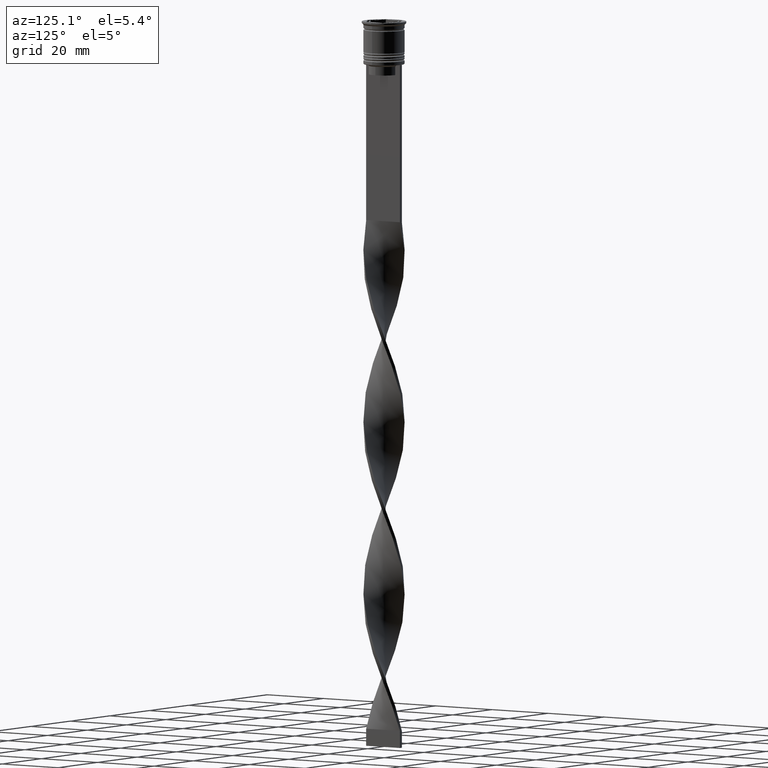
[diagram: clean part render]
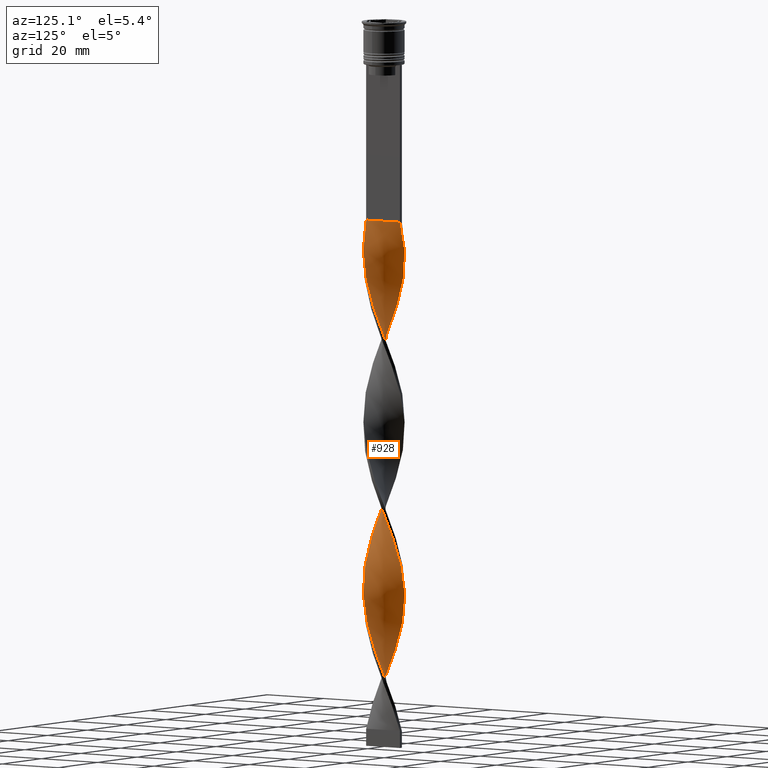
[diagram: same view with one face highlighted and labeled with its STEP entity id]
A machine part, auxiliary view. The second image highlights one B-rep face of the part: STEP entity #928.
In plain terms, the highlighted face is a freeform B-spline surface patch.
Its self-contained STEP definition (entity closure, byte-faithful):
#4 = CARTESIAN_POINT ( 'NONE',  ( 5.148110570242104167, 3.122011780336760189, -90.63725490196078738 ) ) ;
#20 = CARTESIAN_POINT ( 'NONE',  ( -5.634122364000873517, 2.122890762018907029, -178.2843137254901933 ) ) ;
#23 = CARTESIAN_POINT ( 'NONE',  ( -2.131985436030567005, 5.658259501511265555, -112.5490196078431495 ) ) ;
#33 = CARTESIAN_POINT ( 'NONE',  ( 5.830837162583066835, 1.600812440396822023, -86.25490196078432348 ) ) ;
#39 = CARTESIAN_POINT ( 'NONE',  ( 5.593848926018642587, -2.226848488981698626, -175.3627450980391984 ) ) ;
#44 = CARTESIAN_POINT ( 'NONE',  ( 0.5000000000000002220, 6.000000000000000888, -58.50000000000000000 ) ) ;
#52 = CARTESIAN_POINT ( 'NONE',  ( 0.05598187745217741984, 6.046331823121015248, -106.7058823529412024 ) ) ;
#63 = CARTESIAN_POINT ( 'NONE',  ( -1.055981877452178308, -5.953668176878988305, -106.7058823529411882 ) ) ;
#76 = ORIENTED_EDGE ( 'NONE', *, *, #2148, .F. ) ;
#78 = CARTESIAN_POINT ( 'NONE',  ( 3.230580290619939454, 5.111224263495680376, -97.94117647058824616 ) ) ;
#83 = CARTESIAN_POINT ( 'NONE',  ( 2.733484409399326687, 5.364518895816362765, -198.7352941176470722 ) ) ;
#97 = CARTESIAN_POINT ( 'NONE',  ( -5.089420681871064112, 3.216799204635418796, -122.7745098039215605 ) ) ;
#103 = CARTESIAN_POINT ( 'NONE',  ( 6.020539237501857599, -0.05574306863229464004, -181.2058823529411598 ) ) ;
#105 = CARTESIAN_POINT ( 'NONE',  ( 5.437407565418681088, -2.644969083640992924, -127.1568627450980102 ) ) ;
#108 = CARTESIAN_POINT ( 'NONE',  ( -5.907785354072956352, -1.161065118846087874, -187.0490196078431211 ) ) ;
#117 = CARTESIAN_POINT ( 'NONE',  ( 5.634122364000871741, 2.122890762018907029, -87.71568627450979250 ) ) ;
#125 = CARTESIAN_POINT ( 'NONE',  ( -5.089420681871066776, -3.216799204635418796, -93.55882352941176805 ) ) ;
#127 = CARTESIAN_POINT ( 'NONE',  ( 0.5000000000000002220, 6.000000000000000888, -157.8333333333333144 ) ) ;
#138 = CARTESIAN_POINT ( 'NONE',  ( 3.230580290619939454, 5.111224263495680376, -197.2745098039215463 ) ) ;
#146 = CARTESIAN_POINT ( 'NONE',  ( 2.236388528178716140, 5.617813528137045154, -200.1960784313725696 ) ) ;
#148 = CARTESIAN_POINT ( 'NONE',  ( -5.387501025401045140, -2.745194926993649975, -92.09803921568628482 ) ) ;
#150 = CARTESIAN_POINT ( 'NONE',  ( -5.928270878038556013, 1.051477244927329524, -181.2058823529411598 ) ) ;
#165 = CARTESIAN_POINT ( 'NONE',  ( -3.230580290619940786, 5.111224263495681264, -68.72549019607842524 ) ) ;
#168 = CARTESIAN_POINT ( 'NONE',  ( 3.583701545128945121, 4.838086732939006041, -149.0686274509803866 ) ) ;
#178 = CARTESIAN_POINT ( 'NONE',  ( 5.437407565418679312, 2.644969083640992036, -188.5098039215686185 ) ) ;
#180 =( BOUNDED_SURFACE ( )  B_SPLINE_SURFACE ( 1, 2, ( 
 ( #2936, #1127, #2525, #1326, #2227, #3120, #3525, #165, #1039, #442, #739, #237, #469, #1932, #1434, #3163, #3752, #1059, #3139, #3420, #3236, #2206, #1600, #148, #125, #2245, #2180, #2314, #3393, #3457, #1912, #3707, #758, #423, #1951, #3101, #1662, #538, #2634, #832, #721, #2861, #1366, #697, #2615, #1732, #404, #105, #1620, #1307, #2500, #2818, #886, #2081, #312, #3837, #609, #868, #2954, #851, #256, #1147, #334, #1802, #1509, #571, #3007, #2711, #2374, #1818, #3583, #1750, #1220, #297, #1477, #2409, #1199, #554, #3030, #1531, #3253, #1771, #20, #3293, #922, #3324, #3621, #3604, #2339, #2112, #2043, #1184, #625, #594, #906, #1459, #1788, #2658, #3549, #3863, #2990, #1167, #2356 ),
 ( #2098, #3881, #1492, #2689, #2975, #279, #3567, #2058, #2394, #3897, #3308, #3270, #2676, #3722, #2746, #3346, #1568, #1859, #3090, #33, #117, #2728, #2766, #3662, #1549, #396, #2153, #78, #3635, #1299, #1033, #733, #1317, #52, #2792, #1904, #1235, #1008, #1281, #3070, #2511, #965, #688, #353, #97, #3679, #988, #3112, #2426, #3407, #3366, #1841, #941, #3049, #2128, #3132, #714, #415, #667, #1612, #2811, #2471, #1924, #2172, #650, #2221, #1592, #368, #3432, #2492, #1254, #435, #2447, #3385, #1877, #3698, #2192, #2611, #1123, #3506, #1397, #2829, #3814, #3745, #2873, #1712, #3780, #2594, #2238, #178, #3451, #3232, #1052, #2280, #806, #138, #1691, #1674, #479, #3520, #2309, #1998, #3800 ) ),
 .UNSPECIFIED., .F., .F., .F. ) 
 B_SPLINE_SURFACE_WITH_KNOTS ( ( 2, 2 ),
 ( 3, 2, 2, 2, 2, 2, 2, 2, 2, 2, 2, 2, 2, 2, 2, 2, 2, 2, 2, 2, 2, 2, 2, 2, 2, 2, 2, 2, 2, 2, 2, 2, 2, 2, 2, 2, 2, 2, 2, 2, 2, 2, 2, 2, 2, 2, 2, 2, 2, 2, 2, 3 ),
 ( 0.000000000000000000, 1.000000000000000000 ),
 ( 0.000000000000000000, 0.01470588235294117627, 0.02941176470588235253, 0.04411764705882353227, 0.05882352941176470507, 0.07352941176470588480, 0.08823529411764706454, 0.1029411764705882304, 0.1176470588235294101, 0.1323529411764705899, 0.1470588235294117696, 0.1617647058823529493, 0.1764705882352941291, 0.1911764705882352811, 0.2058823529411764608, 0.2205882352941176405, 0.2352941176470588203, 0.2500000000000000000, 0.2647058823529411797, 0.2794117647058823595, 0.2941176470588235392, 0.3088235294117647189, 0.3235294117647058987, 0.3382352941176470784, 0.3529411764705882582, 0.3676470588235294379, 0.3823529411764705621, 0.3970588235294117418, 0.4117647058823529216, 0.4264705882352941013, 0.4411764705882352811, 0.4558823529411764608, 0.4705882352941176405, 0.4852941176470588203, 0.5000000000000000000, 0.5147058823529411242, 0.5294117647058823595, 0.5441176470588234837, 0.5588235294117647189, 0.5735294117647058432, 0.5882352941176470784, 0.6029411764705882026, 0.6176470588235294379, 0.6323529411764705621, 0.6470588235294117974, 0.6617647058823529216, 0.6764705882352941568, 0.6911764705882352811, 0.7058823529411765163, 0.7205882352941176405, 0.7352941176470588758, 0.7500000000000000000 ),
 .UNSPECIFIED. ) 
 GEOMETRIC_REPRESENTATION_ITEM ( )  RATIONAL_B_SPLINE_SURFACE ( (
 ( 1.000000000000000000, 0.9957341762950344677, 1.000000000000000000, 0.9957341762950344677, 1.000000000000000000, 0.9957341762950344677, 1.000000000000000000, 0.9957341762950344677, 1.000000000000000000, 0.9957341762950344677, 1.000000000000000000, 0.9957341762950344677, 1.000000000000000000, 0.9957341762950344677, 1.000000000000000000, 0.9957341762950344677, 1.000000000000000000, 0.9957341762950344677, 1.000000000000000000, 0.9957341762950344677, 1.000000000000000000, 0.9957341762950344677, 1.000000000000000000, 0.9957341762950344677, 1.000000000000000000, 0.9957341762950344677, 1.000000000000000000, 0.9957341762950344677, 1.000000000000000000, 0.9957341762950344677, 1.000000000000000000, 0.9957341762950344677, 1.000000000000000000, 0.9957341762950344677, 1.000000000000000000, 0.9957341762950344677, 1.000000000000000000, 0.9957341762950344677, 1.000000000000000000, 0.9957341762950344677, 1.000000000000000000, 0.9957341762950344677, 1.000000000000000000, 0.9957341762950344677, 1.000000000000000000, 0.9957341762950344677, 1.000000000000000000, 0.9957341762950344677, 1.000000000000000000, 0.9957341762950344677, 1.000000000000000000, 0.9957341762950344677, 1.000000000000000000, 0.9957341762950344677, 1.000000000000000000, 0.9957341762950344677, 1.000000000000000000, 0.9957341762950344677, 1.000000000000000000, 0.9957341762950344677, 1.000000000000000000, 0.9957341762950344677, 1.000000000000000000, 0.9957341762950344677, 1.000000000000000000, 0.9957341762950344677, 1.000000000000000000, 0.9957341762950344677, 1.000000000000000000, 0.9957341762950344677, 1.000000000000000000, 0.9957341762950344677, 1.000000000000000000, 0.9957341762950344677, 1.000000000000000000, 0.9957341762950344677, 1.000000000000000000, 0.9957341762950344677, 1.000000000000000000, 0.9957341762950344677, 1.000000000000000000, 0.9957341762950344677, 1.000000000000000000, 0.9957341762950344677, 1.000000000000000000, 0.9957341762950344677, 1.000000000000000000, 0.9957341762950344677, 1.000000000000000000, 0.9957341762950344677, 1.000000000000000000, 0.9957341762950344677, 1.000000000000000000, 0.9957341762950344677, 1.000000000000000000, 0.9957341762950344677, 1.000000000000000000, 0.9957341762950344677, 1.000000000000000000, 0.9957341762950344677, 1.000000000000000000, 0.9957341762950344677, 1.000000000000000000),
 ( 1.000000000000000000, 0.9957341762950344677, 1.000000000000000000, 0.9957341762950344677, 1.000000000000000000, 0.9957341762950344677, 1.000000000000000000, 0.9957341762950344677, 1.000000000000000000, 0.9957341762950344677, 1.000000000000000000, 0.9957341762950344677, 1.000000000000000000, 0.9957341762950344677, 1.000000000000000000, 0.9957341762950344677, 1.000000000000000000, 0.9957341762950344677, 1.000000000000000000, 0.9957341762950344677, 1.000000000000000000, 0.9957341762950344677, 1.000000000000000000, 0.9957341762950344677, 1.000000000000000000, 0.9957341762950344677, 1.000000000000000000, 0.9957341762950344677, 1.000000000000000000, 0.9957341762950344677, 1.000000000000000000, 0.9957341762950344677, 1.000000000000000000, 0.9957341762950344677, 1.000000000000000000, 0.9957341762950344677, 1.000000000000000000, 0.9957341762950344677, 1.000000000000000000, 0.9957341762950344677, 1.000000000000000000, 0.9957341762950344677, 1.000000000000000000, 0.9957341762950344677, 1.000000000000000000, 0.9957341762950344677, 1.000000000000000000, 0.9957341762950344677, 1.000000000000000000, 0.9957341762950344677, 1.000000000000000000, 0.9957341762950344677, 1.000000000000000000, 0.9957341762950344677, 1.000000000000000000, 0.9957341762950344677, 1.000000000000000000, 0.9957341762950344677, 1.000000000000000000, 0.9957341762950344677, 1.000000000000000000, 0.9957341762950344677, 1.000000000000000000, 0.9957341762950344677, 1.000000000000000000, 0.9957341762950344677, 1.000000000000000000, 0.9957341762950344677, 1.000000000000000000, 0.9957341762950344677, 1.000000000000000000, 0.9957341762950344677, 1.000000000000000000, 0.9957341762950344677, 1.000000000000000000, 0.9957341762950344677, 1.000000000000000000, 0.9957341762950344677, 1.000000000000000000, 0.9957341762950344677, 1.000000000000000000, 0.9957341762950344677, 1.000000000000000000, 0.9957341762950344677, 1.000000000000000000, 0.9957341762950344677, 1.000000000000000000, 0.9957341762950344677, 1.000000000000000000, 0.9957341762950344677, 1.000000000000000000, 0.9957341762950344677, 1.000000000000000000, 0.9957341762950344677, 1.000000000000000000, 0.9957341762950344677, 1.000000000000000000, 0.9957341762950344677, 1.000000000000000000, 0.9957341762950344677, 1.000000000000000000, 0.9957341762950344677, 1.000000000000000000) ) ) 
 REPRESENTATION_ITEM ( '' )  SURFACE ( )  );
#223 = CARTESIAN_POINT ( 'NONE',  ( 2.633686111825095377, -5.414212543332557637, -64.34313725490196134 ) ) ;
#237 = CARTESIAN_POINT ( 'NONE',  ( -4.858813575065530799, 3.599054477032530563, -74.56862745098038658 ) ) ;
#256 = CARTESIAN_POINT ( 'NONE',  ( 4.411678320489673233, 4.097205681500676988, -146.1470588235294201 ) ) ;
#279 = CARTESIAN_POINT ( 'NONE',  ( 3.135386787619625082, -5.170165585153850607, -65.80392156862747299 ) ) ;
#284 = CARTESIAN_POINT ( 'NONE',  ( -0.6110105570574692058, -5.989713357011694939, -154.9117647058823479 ) ) ;
#288 = CARTESIAN_POINT ( 'NONE',  ( -5.387501025401045140, -2.745194926993649975, -92.09803921568628482 ) ) ;
#297 = CARTESIAN_POINT ( 'NONE',  ( -2.236388528178716584, 5.617813528137047818, -165.1372549019608016 ) ) ;
#301 = CARTESIAN_POINT ( 'NONE',  ( -4.411678320489672345, 4.097205681500675212, -119.8529411764705799 ) ) ;
#304 = CARTESIAN_POINT ( 'NONE',  ( 4.486786045491808927, -4.014816431915659400, -122.7745098039215605 ) ) ;
#312 = CARTESIAN_POINT ( 'NONE',  ( 5.907785354072956352, 1.161065118846087207, -137.3823529411764639 ) ) ;
#318 = CARTESIAN_POINT ( 'NONE',  ( -5.907785354072954576, 1.161065118846088762, -128.6176470588235361 ) ) ;
#322 = CARTESIAN_POINT ( 'NONE',  ( 4.114758515918088833, -4.430578386798787349, -121.3137254901960773 ) ) ;
#334 = CARTESIAN_POINT ( 'NONE',  ( 3.583701545128945121, 4.838086732939006041, -149.0686274509803866 ) ) ;
#340 = CARTESIAN_POINT ( 'NONE',  ( 3.135386787619625082, -5.170165585153850607, -165.1372549019608016 ) ) ;
#344 = CARTESIAN_POINT ( 'NONE',  ( -6.015373881509671783, -0.6136281867224271380, -86.25490196078432348 ) ) ;
#353 = CARTESIAN_POINT ( 'NONE',  ( -4.791340338341087524, 3.688403482277188061, -121.3137254901960631 ) ) ;
#362 = CARTESIAN_POINT ( 'NONE',  ( -2.131985436030568781, -5.658259501511267331, -103.7843137254901791 ) ) ;
#368 = CARTESIAN_POINT ( 'NONE',  ( -0.05598187745217816924, -6.046331823121015248, -156.3725490196078454 ) ) ;
#380 = CARTESIAN_POINT ( 'NONE',  ( 2.131985436030569225, 5.658259501511266443, -153.4509803921568789 ) ) ;
#396 = CARTESIAN_POINT ( 'NONE',  ( 4.114758515918087056, 4.430578386798786461, -95.01960784313725128 ) ) ;
#402 = CARTESIAN_POINT ( 'NONE',  ( 0.6110105570574709821, 5.989713357011695827, -204.5784313725490335 ) ) ;
#403 = VERTEX_POINT ( 'NONE', #3629 ) ;
#404 = CARTESIAN_POINT ( 'NONE',  ( 5.148110570242106832, -3.122011780336759745, -125.6960784313725412 ) ) ;
#406 = CARTESIAN_POINT ( 'NONE',  ( -5.593848926018644363, -2.226848488981698626, -189.9705882352941160 ) ) ;
#415 = CARTESIAN_POINT ( 'NONE',  ( -4.858813575065529022, -3.599054477032529675, -141.7647058823529562 ) ) ;
#423 = CARTESIAN_POINT ( 'NONE',  ( -1.055981877452178086, -5.953668176878989193, -106.7058823529412024 ) ) ;
#425 = CARTESIAN_POINT ( 'NONE',  ( -1.055981877452178308, -5.953668176878988305, -206.0392156862745026 ) ) ;
#432 =( BOUNDED_CURVE ( )  B_SPLINE_CURVE ( 2, ( #44, #1211, #2738, #1523, #2982, #2091, #1832, #1795, #2401, #2418, #3612, #876, #1227, #3628, #615, #2068, #932, #1190, #3282, #344, #2437, #2719, #1244, #288, #3646, #2104, #1808, #2755, #3060, #955, #3357, #362, #1560, #63, #3301, #602, #3016, #659, #1851, #2997, #3593, #1483, #1269, #322, #304, #2682, #1955, #3441, #1309, #444, #2820, #741, #2845, #2229, #1368, #1602, #3671, #1893, #1353, #1868, #3395, #1020, #168, #1934, #2528, #380, #2502, #2802, #127, #977, #1061, #2163, #3709, #701, #2482, #1329, #3103, #2210, #678, #3142, #3166, #2247, #999, #3736, #150, #3376, #1642, #3423, #108, #3459, #406, #1623, #1290, #1042, #723, #1914, #2546, #3079, #3754, #3122, #2780, #425, #3689 ),
 .UNSPECIFIED., .F., .T. ) 
 B_SPLINE_CURVE_WITH_KNOTS ( ( 3, 2, 2, 2, 2, 2, 2, 2, 2, 2, 2, 2, 2, 2, 2, 2, 2, 2, 2, 2, 2, 2, 2, 2, 2, 2, 2, 2, 2, 2, 2, 2, 2, 2, 2, 2, 2, 2, 2, 2, 2, 2, 2, 2, 2, 2, 2, 2, 2, 2, 2, 3 ),
 ( 0.000000000000000000, 0.01470588235294117453, 0.02941176470588234906, 0.04411764705882353227, 0.05882352941176469813, 0.07352941176470588480, 0.08823529411764706454, 0.1029411764705882443, 0.1176470588235293963, 0.1323529411764705899, 0.1470588235294117696, 0.1617647058823529493, 0.1764705882352941291, 0.1911764705882352811, 0.2058823529411764885, 0.2205882352941176405, 0.2352941176470587925, 0.2500000000000000000, 0.2647058823529411797, 0.2794117647058823595, 0.2941176470588235392, 0.3088235294117647189, 0.3235294117647058987, 0.3382352941176470229, 0.3529411764705882582, 0.3676470588235294379, 0.3823529411764705621, 0.3970588235294117418, 0.4117647058823529771, 0.4264705882352941013, 0.4411764705882352811, 0.4558823529411764608, 0.4705882352941175850, 0.4852941176470588203, 0.5000000000000000000, 0.5147058823529411242, 0.5294117647058823595, 0.5441176470588234837, 0.5588235294117647189, 0.5735294117647058432, 0.5882352941176470784, 0.6029411764705882026, 0.6176470588235294379, 0.6323529411764705621, 0.6470588235294117974, 0.6617647058823529216, 0.6764705882352940458, 0.6911764705882351700, 0.7058823529411765163, 0.7205882352941176405, 0.7352941176470588758, 0.7500000000000000000 ),
 .UNSPECIFIED. ) 
 CURVE ( )  GEOMETRIC_REPRESENTATION_ITEM ( )  RATIONAL_B_SPLINE_CURVE ( ( 1.000000000000000000, 0.9957341762950344677, 1.000000000000000000, 0.9957341762950344677, 1.000000000000000000, 0.9957341762950344677, 1.000000000000000000, 0.9957341762950344677, 1.000000000000000000, 0.9957341762950344677, 1.000000000000000000, 0.9957341762950344677, 1.000000000000000000, 0.9957341762950344677, 1.000000000000000000, 0.9957341762950344677, 1.000000000000000000, 0.9957341762950344677, 1.000000000000000000, 0.9957341762950344677, 1.000000000000000000, 0.9957341762950344677, 1.000000000000000000, 0.9957341762950344677, 1.000000000000000000, 0.9957341762950344677, 1.000000000000000000, 0.9957341762950344677, 1.000000000000000000, 0.9957341762950344677, 1.000000000000000000, 0.9957341762950344677, 1.000000000000000000, 0.9957341762950344677, 1.000000000000000000, 0.9957341762950344677, 1.000000000000000000, 0.9957341762950344677, 1.000000000000000000, 0.9957341762950344677, 1.000000000000000000, 0.9957341762950344677, 1.000000000000000000, 0.9957341762950344677, 1.000000000000000000, 0.9957341762950344677, 1.000000000000000000, 0.9957341762950344677, 1.000000000000000000, 0.9957341762950344677, 1.000000000000000000, 0.9957341762950344677, 1.000000000000000000, 0.9957341762950344677, 1.000000000000000000, 0.9957341762950344677, 1.000000000000000000, 0.9957341762950344677, 1.000000000000000000, 0.9957341762950344677, 1.000000000000000000, 0.9957341762950344677, 1.000000000000000000, 0.9957341762950344677, 1.000000000000000000, 0.9957341762950344677, 1.000000000000000000, 0.9957341762950344677, 1.000000000000000000, 0.9957341762950344677, 1.000000000000000000, 0.9957341762950344677, 1.000000000000000000, 0.9957341762950344677, 1.000000000000000000, 0.9957341762950344677, 1.000000000000000000, 0.9957341762950344677, 1.000000000000000000, 0.9957341762950344677, 1.000000000000000000, 0.9957341762950344677, 1.000000000000000000, 0.9957341762950344677, 1.000000000000000000, 0.9957341762950344677, 1.000000000000000000, 0.9957341762950344677, 1.000000000000000000, 0.9957341762950344677, 1.000000000000000000, 0.9957341762950344677, 1.000000000000000000, 0.9957341762950344677, 1.000000000000000000, 0.9957341762950344677, 1.000000000000000000, 0.9957341762950344677, 1.000000000000000000, 0.9957341762950344677, 1.000000000000000000, 0.9957341762950344677, 1.000000000000000000 ) ) 
 REPRESENTATION_ITEM ( '' )  );
#435 = CARTESIAN_POINT ( 'NONE',  ( 2.131985436030567005, -5.658259501511264666, -162.2156862745098351 ) ) ;
#442 = CARTESIAN_POINT ( 'NONE',  ( -4.114758515918087944, 4.430578386798787349, -71.64705882352943433 ) ) ;
#444 = CARTESIAN_POINT ( 'NONE',  ( 5.830837162583069500, -1.600812440396820246, -130.0784313725490335 ) ) ;
#469 = CARTESIAN_POINT ( 'NONE',  ( -5.148110570242105943, 3.122011780336761522, -76.02941176470586981 ) ) ;
#479 = CARTESIAN_POINT ( 'NONE',  ( 1.701213882420739232, 5.775454209519709892, -201.6568627450980387 ) ) ;
#538 = CARTESIAN_POINT ( 'NONE',  ( 1.166039236662763434, -5.933094890902377294, -112.5490196078431495 ) ) ;
#541 = CARTESIAN_POINT ( 'NONE',  ( 4.032016302638260719, -4.506007880724164139, -68.72549019607842524 ) ) ;
#554 = CARTESIAN_POINT ( 'NONE',  ( -4.114758515918087944, 4.430578386798787349, -170.9803921568627629 ) ) ;
#571 = CARTESIAN_POINT ( 'NONE',  ( 2.131985436030568781, 5.658259501511265555, -153.4509803921568789 ) ) ;
#580 = CARTESIAN_POINT ( 'NONE',  ( -5.634122364000871741, -2.122890762018906141, -137.3823529411764639 ) ) ;
#594 = CARTESIAN_POINT ( 'NONE',  ( -4.791340338341087524, -3.688403482277189838, -194.3529411764705799 ) ) ;
#598 = CARTESIAN_POINT ( 'NONE',  ( -5.148110570242102391, -3.122011780336762410, -140.3039215686274588 ) ) ;
#602 = CARTESIAN_POINT ( 'NONE',  ( 0.05598187745217893252, -6.046331823121016136, -109.6274509803921404 ) ) ;
#609 = CARTESIAN_POINT ( 'NONE',  ( 5.593848926018644363, 2.226848488981700402, -140.3039215686274588 ) ) ;
#612 = CARTESIAN_POINT ( 'NONE',  ( -0.4999999999999994449, 5.999999999999999112, -108.1666666666666572 ) ) ;
#615 = CARTESIAN_POINT ( 'NONE',  ( -5.634122364000873517, 2.122890762018907029, -78.95098039215686470 ) ) ;
#625 = CARTESIAN_POINT ( 'NONE',  ( -5.089420681871066776, -3.216799204635418796, -192.8921568627450824 ) ) ;
#633 = CARTESIAN_POINT ( 'NONE',  ( -1.593983656741371657, 5.805963839195126042, -111.0882352941176379 ) ) ;
#650 = CARTESIAN_POINT ( 'NONE',  ( -1.701213882420739676, -5.775454209519709892, -151.9901960784313530 ) ) ;
#655 = CARTESIAN_POINT ( 'NONE',  ( 2.633686111825095377, -5.414212543332557637, -163.6764705882352757 ) ) ;
#659 = CARTESIAN_POINT ( 'NONE',  ( 1.166039236662763434, -5.933094890902378182, -112.5490196078431495 ) ) ;
#667 = CARTESIAN_POINT ( 'NONE',  ( -4.486786045491809816, -4.014816431915656736, -143.2254901960784537 ) ) ;
#673 = CARTESIAN_POINT ( 'NONE',  ( 5.634122364000871741, 2.122890762018907029, -187.0490196078431211 ) ) ;
#678 = CARTESIAN_POINT ( 'NONE',  ( -4.486786045491809816, 4.014816431915658512, -172.4411764705882035 ) ) ;
#688 = CARTESIAN_POINT ( 'NONE',  ( -4.411678320489672345, 4.097205681500675212, -119.8529411764705799 ) ) ;
#697 = CARTESIAN_POINT ( 'NONE',  ( 4.114758515918088833, -4.430578386798787349, -121.3137254901960631 ) ) ;
#701 = CARTESIAN_POINT ( 'NONE',  ( -2.236388528178716140, 5.617813528137047818, -165.1372549019608016 ) ) ;
#714 = CARTESIAN_POINT ( 'NONE',  ( -5.148110570242102391, -3.122011780336762410, -140.3039215686274588 ) ) ;
#719 = CARTESIAN_POINT ( 'NONE',  ( 1.166039236662764322, 5.933094890902376406, -203.1176470588235361 ) ) ;
#721 = CARTESIAN_POINT ( 'NONE',  ( 2.733484409399328463, -5.364518895816363653, -116.9313725490195992 ) ) ;
#723 = CARTESIAN_POINT ( 'NONE',  ( -4.411678320489674121, -4.097205681500676100, -195.8137254901960773 ) ) ;
#733 = CARTESIAN_POINT ( 'NONE',  ( 1.166039236662764322, 5.933094890902375518, -103.7843137254901933 ) ) ;
#737 = CARTESIAN_POINT ( 'NONE',  ( 6.025704593494046080, 0.5021420494578371363, -182.6666666666666856 ) ) ;
#739 = CARTESIAN_POINT ( 'NONE',  ( -4.486786045491809816, 4.014816431915658512, -73.10784313725488914 ) ) ;
#741 = CARTESIAN_POINT ( 'NONE',  ( 6.025704593494047856, -0.5021420494578385796, -133.0000000000000000 ) ) ;
#758 = CARTESIAN_POINT ( 'NONE',  ( -1.593983656741373212, -5.805963839195126042, -105.2450980392156765 ) ) ;
#781 = CARTESIAN_POINT ( 'NONE',  ( 0.5000000000000002220, -6.000000000000000000, -58.50000000000000000 ) ) ;
#806 = CARTESIAN_POINT ( 'NONE',  ( 3.672669403269014143, 4.770901325147232086, -195.8137254901960773 ) ) ;
#832 = CARTESIAN_POINT ( 'NONE',  ( 2.236388528178716140, -5.617813528137047818, -115.4705882352940876 ) ) ;
#851 = CARTESIAN_POINT ( 'NONE',  ( 4.791340338341086635, 3.688403482277191614, -144.6862745098039227 ) ) ;
#868 = CARTESIAN_POINT ( 'NONE',  ( 5.387501025401045140, 2.745194926993649087, -141.7647058823529562 ) ) ;
#871 = CARTESIAN_POINT ( 'NONE',  ( -3.672669403269011923, -4.770901325147233862, -146.1470588235294201 ) ) ;
#876 = CARTESIAN_POINT ( 'NONE',  ( -4.858813575065530799, 3.599054477032530563, -74.56862745098038658 ) ) ;
#881 = B_SPLINE_CURVE_WITH_KNOTS ( 'NONE', 3,
 ( #3730, #1074, #1928, #2876 ),
 .UNSPECIFIED., .F., .F.,
 ( 4, 4 ),
 ( 0.000000000000000000, 1.000000000000000000 ),
 .UNSPECIFIED. ) ;
#886 = CARTESIAN_POINT ( 'NONE',  ( 6.020539237501859375, 0.05574306863229182285, -134.4607843137254974 ) ) ;
#895 = CARTESIAN_POINT ( 'NONE',  ( 4.411678320489672345, -4.097205681500675212, -169.5196078431372371 ) ) ;
#906 = CARTESIAN_POINT ( 'NONE',  ( -4.411678320489674121, -4.097205681500676100, -195.8137254901960773 ) ) ;
#910 = CARTESIAN_POINT ( 'NONE',  ( -4.032016302638258942, 4.506007880724164139, -118.3921568627451109 ) ) ;
#922 = CARTESIAN_POINT ( 'NONE',  ( -5.928270878038556013, 1.051477244927329524, -181.2058823529411598 ) ) ;
#927 = CARTESIAN_POINT ( 'NONE',  ( -5.089420681871064112, 3.216799204635418796, -122.7745098039215605 ) ) ;
#928 = ADVANCED_FACE ( 'NONE', ( #3439 ), #180, .T. ) ;
#932 = CARTESIAN_POINT ( 'NONE',  ( -5.928270878038556013, 1.051477244927329524, -81.87254901960783116 ) ) ;
#941 = CARTESIAN_POINT ( 'NONE',  ( -5.928270878038555125, -1.051477244927326860, -134.4607843137254974 ) ) ;
#949 = CARTESIAN_POINT ( 'NONE',  ( -1.166039236662764988, -5.933094890902375518, -153.4509803921568789 ) ) ;
#955 = CARTESIAN_POINT ( 'NONE',  ( -3.135386787619625970, -5.170165585153851495, -100.8627450980392126 ) ) ;
#965 = CARTESIAN_POINT ( 'NONE',  ( -4.032016302638259830, 4.506007880724164139, -118.3921568627451109 ) ) ;
#977 = CARTESIAN_POINT ( 'NONE',  ( -0.05598187745217849537, 6.046331823121016136, -159.2941176470588118 ) ) ;
#988 = CARTESIAN_POINT ( 'NONE',  ( -5.593848926018643475, 2.226848488981696850, -125.6960784313725412 ) ) ;
#999 = CARTESIAN_POINT ( 'NONE',  ( -5.634122364000873517, 2.122890762018907029, -178.2843137254901933 ) ) ;
#1008 = CARTESIAN_POINT ( 'NONE',  ( -2.131985436030567005, 5.658259501511264666, -112.5490196078431495 ) ) ;
#1014 = CARTESIAN_POINT ( 'NONE',  ( 5.830837162583065947, 1.600812440396822023, -185.5882352941176237 ) ) ;
#1020 = CARTESIAN_POINT ( 'NONE',  ( 4.032016302638262495, 4.506007880724165027, -147.6078431372548891 ) ) ;
#1033 = CARTESIAN_POINT ( 'NONE',  ( 1.701213882420739232, 5.775454209519709892, -102.3235294117646959 ) ) ;
#1039 = CARTESIAN_POINT ( 'NONE',  ( -3.672669403269013699, 4.770901325147233862, -70.18627450980390847 ) ) ;
#1041 = LINE ( 'NONE', #781, #1891 ) ;
#1042 = CARTESIAN_POINT ( 'NONE',  ( -4.791340338341087524, -3.688403482277189838, -194.3529411764705799 ) ) ;
#1052 = CARTESIAN_POINT ( 'NONE',  ( 4.486786045491808927, 4.014816431915656736, -192.8921568627450824 ) ) ;
#1059 = CARTESIAN_POINT ( 'NONE',  ( -6.025704593494047856, 0.5021420494578378024, -83.33333333333332860 ) ) ;
#1061 = CARTESIAN_POINT ( 'NONE',  ( -0.6110105570574712042, 5.989713357011696715, -160.7549019607842808 ) ) ;
#1071 =( BOUNDED_CURVE ( )  B_SPLINE_CURVE ( 2, ( #1384, #3257, #2959, #1100, #223, #3482, #2300, #541, #1421, #2285, #3498, #1130, #1990, #2619, #3823, #2319, #3200, #3533, #2030, #1208, #3055, #2062, #4, #3276, #1465, #3570, #2101, #3329, #2662, #1519, #3641, #1224, #2994, #2116, #612, #2414, #633, #23, #3866, #3297, #1171, #910, #301, #3352, #927, #2692, #1847, #3625, #318, #3011, #1495, #3884, #2432, #1480, #580, #2398, #598, #1805, #2359, #2734, #871, #2679, #3589, #1776, #2978, #949, #284, #1829, #2378, #1792, #3038, #3608, #655, #340, #1187, #2716, #895, #1536, #2088, #3312, #39, #1240, #2139, #2839, #103, #737, #1598, #1014, #673, #2751, #1305, #3075, #3099, #3418, #2159, #2203, #83, #146, #3137, #719, #402, #3372, #1635 ),
 .UNSPECIFIED., .F., .T. ) 
 B_SPLINE_CURVE_WITH_KNOTS ( ( 3, 2, 2, 2, 2, 2, 2, 2, 2, 2, 2, 2, 2, 2, 2, 2, 2, 2, 2, 2, 2, 2, 2, 2, 2, 2, 2, 2, 2, 2, 2, 2, 2, 2, 2, 2, 2, 2, 2, 2, 2, 2, 2, 2, 2, 2, 2, 2, 2, 2, 2, 3 ),
 ( 0.000000000000000000, 0.01470588235294117453, 0.02941176470588234906, 0.04411764705882353227, 0.05882352941176469813, 0.07352941176470588480, 0.08823529411764706454, 0.1029411764705882443, 0.1176470588235293963, 0.1323529411764705899, 0.1470588235294117696, 0.1617647058823529493, 0.1764705882352941291, 0.1911764705882352811, 0.2058823529411764885, 0.2205882352941176405, 0.2352941176470587925, 0.2500000000000000000, 0.2647058823529411797, 0.2794117647058823595, 0.2941176470588235392, 0.3088235294117647189, 0.3235294117647058987, 0.3382352941176470229, 0.3529411764705882582, 0.3676470588235294379, 0.3823529411764705621, 0.3970588235294117418, 0.4117647058823529771, 0.4264705882352941013, 0.4411764705882352811, 0.4558823529411764608, 0.4705882352941175850, 0.4852941176470588203, 0.5000000000000000000, 0.5147058823529411242, 0.5294117647058823595, 0.5441176470588234837, 0.5588235294117647189, 0.5735294117647058432, 0.5882352941176470784, 0.6029411764705882026, 0.6176470588235294379, 0.6323529411764705621, 0.6470588235294117974, 0.6617647058823529216, 0.6764705882352940458, 0.6911764705882351700, 0.7058823529411765163, 0.7205882352941176405, 0.7352941176470588758, 0.7500000000000000000 ),
 .UNSPECIFIED. ) 
 CURVE ( )  GEOMETRIC_REPRESENTATION_ITEM ( )  RATIONAL_B_SPLINE_CURVE ( ( 1.000000000000000000, 0.9957341762950344677, 1.000000000000000000, 0.9957341762950344677, 1.000000000000000000, 0.9957341762950344677, 1.000000000000000000, 0.9957341762950344677, 1.000000000000000000, 0.9957341762950344677, 1.000000000000000000, 0.9957341762950344677, 1.000000000000000000, 0.9957341762950344677, 1.000000000000000000, 0.9957341762950344677, 1.000000000000000000, 0.9957341762950344677, 1.000000000000000000, 0.9957341762950344677, 1.000000000000000000, 0.9957341762950344677, 1.000000000000000000, 0.9957341762950344677, 1.000000000000000000, 0.9957341762950344677, 1.000000000000000000, 0.9957341762950344677, 1.000000000000000000, 0.9957341762950344677, 1.000000000000000000, 0.9957341762950344677, 1.000000000000000000, 0.9957341762950344677, 1.000000000000000000, 0.9957341762950344677, 1.000000000000000000, 0.9957341762950344677, 1.000000000000000000, 0.9957341762950344677, 1.000000000000000000, 0.9957341762950344677, 1.000000000000000000, 0.9957341762950344677, 1.000000000000000000, 0.9957341762950344677, 1.000000000000000000, 0.9957341762950344677, 1.000000000000000000, 0.9957341762950344677, 1.000000000000000000, 0.9957341762950344677, 1.000000000000000000, 0.9957341762950344677, 1.000000000000000000, 0.9957341762950344677, 1.000000000000000000, 0.9957341762950344677, 1.000000000000000000, 0.9957341762950344677, 1.000000000000000000, 0.9957341762950344677, 1.000000000000000000, 0.9957341762950344677, 1.000000000000000000, 0.9957341762950344677, 1.000000000000000000, 0.9957341762950344677, 1.000000000000000000, 0.9957341762950344677, 1.000000000000000000, 0.9957341762950344677, 1.000000000000000000, 0.9957341762950344677, 1.000000000000000000, 0.9957341762950344677, 1.000000000000000000, 0.9957341762950344677, 1.000000000000000000, 0.9957341762950344677, 1.000000000000000000, 0.9957341762950344677, 1.000000000000000000, 0.9957341762950344677, 1.000000000000000000, 0.9957341762950344677, 1.000000000000000000, 0.9957341762950344677, 1.000000000000000000, 0.9957341762950344677, 1.000000000000000000, 0.9957341762950344677, 1.000000000000000000, 0.9957341762950344677, 1.000000000000000000, 0.9957341762950344677, 1.000000000000000000, 0.9957341762950344677, 1.000000000000000000, 0.9957341762950344677, 1.000000000000000000, 0.9957341762950344677, 1.000000000000000000 ) ) 
 REPRESENTATION_ITEM ( '' )  );
#1074 = CARTESIAN_POINT ( 'NONE',  ( -0.5000000000000004441, -2.000000000000000888, -207.5000000000000000 ) ) ;
#1100 = CARTESIAN_POINT ( 'NONE',  ( 2.131985436030567005, -5.658259501511265555, -62.88235294117647101 ) ) ;
#1123 = CARTESIAN_POINT ( 'NONE',  ( 5.089420681871065000, -3.216799204635418352, -172.4411764705882035 ) ) ;
#1127 = CARTESIAN_POINT ( 'NONE',  ( -0.05598187745217849537, 6.046331823121015248, -59.96078431372549744 ) ) ;
#1130 = CARTESIAN_POINT ( 'NONE',  ( 5.387501025401043364, -2.745194926993648199, -74.56862745098038658 ) ) ;
#1147 = CARTESIAN_POINT ( 'NONE',  ( 4.032016302638263383, 4.506007880724165027, -147.6078431372548891 ) ) ;
#1167 = CARTESIAN_POINT ( 'NONE',  ( -1.055981877452178086, -5.953668176878989193, -206.0392156862745026 ) ) ;
#1171 = CARTESIAN_POINT ( 'NONE',  ( -3.583701545128942012, 4.838086732939006041, -116.9313725490195992 ) ) ;
#1184 = CARTESIAN_POINT ( 'NONE',  ( -5.387501025401045140, -2.745194926993649975, -191.4313725490196134 ) ) ;
#1187 = CARTESIAN_POINT ( 'NONE',  ( 3.583701545128941124, -4.838086732939006041, -166.5980392156862706 ) ) ;
#1190 = CARTESIAN_POINT ( 'NONE',  ( -6.025704593494047856, 0.5021420494578378024, -83.33333333333332860 ) ) ;
#1199 = CARTESIAN_POINT ( 'NONE',  ( -3.672669403269013699, 4.770901325147233862, -169.5196078431372371 ) ) ;
#1208 = CARTESIAN_POINT ( 'NONE',  ( 5.830837162583065947, 1.600812440396822023, -86.25490196078432348 ) ) ;
#1211 = CARTESIAN_POINT ( 'NONE',  ( -0.05598187745217849537, 6.046331823121016136, -59.96078431372549034 ) ) ;
#1220 = CARTESIAN_POINT ( 'NONE',  ( -1.701213882420739676, 5.775454209519711668, -163.6764705882352757 ) ) ;
#1224 = CARTESIAN_POINT ( 'NONE',  ( 1.166039236662764322, 5.933094890902376406, -103.7843137254901791 ) ) ;
#1227 = CARTESIAN_POINT ( 'NONE',  ( -5.148110570242105943, 3.122011780336761522, -76.02941176470586981 ) ) ;
#1235 = CARTESIAN_POINT ( 'NONE',  ( -1.593983656741371657, 5.805963839195126042, -111.0882352941176379 ) ) ;
#1240 = CARTESIAN_POINT ( 'NONE',  ( 5.800196826636241809, -1.708502050969748609, -176.8235294117647243 ) ) ;
#1244 = CARTESIAN_POINT ( 'NONE',  ( -5.593848926018644363, -2.226848488981698626, -90.63725490196078738 ) ) ;
#1254 = CARTESIAN_POINT ( 'NONE',  ( 1.593983656741372767, -5.805963839195126042, -160.7549019607842808 ) ) ;
#1269 = CARTESIAN_POINT ( 'NONE',  ( 3.672669403269013699, -4.770901325147233862, -119.8529411764705799 ) ) ;
#1281 = CARTESIAN_POINT ( 'NONE',  ( -2.633686111825096265, 5.414212543332556749, -114.0098039215686185 ) ) ;
#1290 = CARTESIAN_POINT ( 'NONE',  ( -5.089420681871066776, -3.216799204635418796, -192.8921568627450824 ) ) ;
#1299 = CARTESIAN_POINT ( 'NONE',  ( 2.236388528178716584, 5.617813528137046042, -100.8627450980392126 ) ) ;
#1305 = CARTESIAN_POINT ( 'NONE',  ( 5.148110570242104167, 3.122011780336760189, -189.9705882352941160 ) ) ;
#1307 = CARTESIAN_POINT ( 'NONE',  ( 5.830837162583069500, -1.600812440396820246, -130.0784313725490335 ) ) ;
#1309 = CARTESIAN_POINT ( 'NONE',  ( 5.634122364000873517, -2.122890762018908362, -128.6176470588235361 ) ) ;
#1317 = CARTESIAN_POINT ( 'NONE',  ( 0.6110105570574709821, 5.989713357011695827, -105.2450980392156765 ) ) ;
#1326 = CARTESIAN_POINT ( 'NONE',  ( -1.166039236662763434, 5.933094890902377294, -62.88235294117647811 ) ) ;
#1329 = CARTESIAN_POINT ( 'NONE',  ( -3.230580290619940786, 5.111224263495681264, -168.0588235294117680 ) ) ;
#1353 = CARTESIAN_POINT ( 'NONE',  ( 5.089420681871067664, 3.216799204635417464, -143.2254901960784537 ) ) ;
#1366 = CARTESIAN_POINT ( 'NONE',  ( 3.672669403269013699, -4.770901325147233862, -119.8529411764705799 ) ) ;
#1368 = CARTESIAN_POINT ( 'NONE',  ( 5.907785354072956352, 1.161065118846087207, -137.3823529411764639 ) ) ;
#1384 = CARTESIAN_POINT ( 'NONE',  ( 0.5000000000000002220, -5.999999999999999112, -58.50000000000000000 ) ) ;
#1397 = CARTESIAN_POINT ( 'NONE',  ( 5.593848926018642587, -2.226848488981698626, -175.3627450980391984 ) ) ;
#1421 = CARTESIAN_POINT ( 'NONE',  ( 4.411678320489672345, -4.097205681500675212, -70.18627450980390847 ) ) ;
#1434 = CARTESIAN_POINT ( 'NONE',  ( -5.634122364000873517, 2.122890762018907029, -78.95098039215686470 ) ) ;
#1459 = CARTESIAN_POINT ( 'NONE',  ( -4.032016302638262495, -4.506007880724165027, -197.2745098039215463 ) ) ;
#1465 = CARTESIAN_POINT ( 'NONE',  ( 4.486786045491808927, 4.014816431915656736, -93.55882352941176805 ) ) ;
#1477 = CARTESIAN_POINT ( 'NONE',  ( -2.733484409399328019, 5.364518895816364541, -166.5980392156862706 ) ) ;
#1480 = CARTESIAN_POINT ( 'NONE',  ( -5.830837162583065947, -1.600812440396822689, -135.9215686274509665 ) ) ;
#1483 = CARTESIAN_POINT ( 'NONE',  ( 3.230580290619939010, -5.111224263495682152, -118.3921568627451109 ) ) ;
#1492 = CARTESIAN_POINT ( 'NONE',  ( 1.593983656741372767, -5.805963839195126042, -61.42156862745097357 ) ) ;
#1495 = CARTESIAN_POINT ( 'NONE',  ( -6.020539237501857599, 0.05574306863229388370, -131.5392156862745310 ) ) ;
#1509 = CARTESIAN_POINT ( 'NONE',  ( 2.633686111825096710, 5.414212543332559413, -151.9901960784313530 ) ) ;
#1519 = CARTESIAN_POINT ( 'NONE',  ( 2.236388528178716140, 5.617813528137045154, -100.8627450980392126 ) ) ;
#1523 = CARTESIAN_POINT ( 'NONE',  ( -1.166039236662763434, 5.933094890902378182, -62.88235294117647101 ) ) ;
#1531 = CARTESIAN_POINT ( 'NONE',  ( -4.858813575065530799, 3.599054477032530563, -173.9019607843137294 ) ) ;
#1536 = CARTESIAN_POINT ( 'NONE',  ( 4.791340338341086635, -3.688403482277188949, -170.9803921568627629 ) ) ;
#1549 = CARTESIAN_POINT ( 'NONE',  ( 4.486786045491808927, 4.014816431915656736, -93.55882352941176805 ) ) ;
#1560 = CARTESIAN_POINT ( 'NONE',  ( -1.593983656741373212, -5.805963839195126042, -105.2450980392156765 ) ) ;
#1568 = CARTESIAN_POINT ( 'NONE',  ( 6.020539237501857599, -0.05574306863229464004, -81.87254901960783116 ) ) ;
#1592 = CARTESIAN_POINT ( 'NONE',  ( -0.6110105570574692058, -5.989713357011694939, -154.9117647058823479 ) ) ;
#1598 = CARTESIAN_POINT ( 'NONE',  ( 5.928270878038555125, 1.051477244927328636, -184.1274509803921546 ) ) ;
#1600 = CARTESIAN_POINT ( 'NONE',  ( -5.593848926018644363, -2.226848488981698626, -90.63725490196078738 ) ) ;
#1602 = CARTESIAN_POINT ( 'NONE',  ( 5.800196826636243586, 1.708502050969746833, -138.8431372549019329 ) ) ;
#1612 = CARTESIAN_POINT ( 'NONE',  ( -4.114758515918085280, -4.430578386798788237, -144.6862745098039227 ) ) ;
#1620 = CARTESIAN_POINT ( 'NONE',  ( 5.634122364000873517, -2.122890762018908362, -128.6176470588235361 ) ) ;
#1623 = CARTESIAN_POINT ( 'NONE',  ( -5.387501025401045140, -2.745194926993649975, -191.4313725490196134 ) ) ;
#1635 = CARTESIAN_POINT ( 'NONE',  ( -0.4999999999999994449, 5.999999999999999112, -207.5000000000000000 ) ) ;
#1642 = CARTESIAN_POINT ( 'NONE',  ( -6.020539237501859375, -0.05574306863229388370, -184.1274509803921546 ) ) ;
#1662 = CARTESIAN_POINT ( 'NONE',  ( 0.6110105570574698719, -5.989713357011695827, -111.0882352941176379 ) ) ;
#1674 = CARTESIAN_POINT ( 'NONE',  ( 2.236388528178716584, 5.617813528137046042, -200.1960784313725981 ) ) ;
#1691 = CARTESIAN_POINT ( 'NONE',  ( 2.733484409399326687, 5.364518895816362765, -198.7352941176470722 ) ) ;
#1696 = ORIENTED_EDGE ( 'NONE', *, *, #3199, .F. ) ;
#1698 = CARTESIAN_POINT ( 'NONE',  ( -0.5000000000000009992, -6.000000000000000888, -207.5000000000000000 ) ) ;
#1712 = CARTESIAN_POINT ( 'NONE',  ( 6.025704593494046080, 0.5021420494578371363, -182.6666666666666572 ) ) ;
#1732 = CARTESIAN_POINT ( 'NONE',  ( 4.858813575065529911, -3.599054477032532340, -124.2352941176470580 ) ) ;
#1750 = CARTESIAN_POINT ( 'NONE',  ( -1.166039236662763434, 5.933094890902377294, -162.2156862745098351 ) ) ;
#1771 = CARTESIAN_POINT ( 'NONE',  ( -5.437407565418681088, 2.644969083640993368, -176.8235294117647243 ) ) ;
#1776 = CARTESIAN_POINT ( 'NONE',  ( -2.236388528178714363, -5.617813528137046042, -150.5294117647058840 ) ) ;
#1788 = CARTESIAN_POINT ( 'NONE',  ( -3.583701545128942456, -4.838086732939007817, -198.7352941176470722 ) ) ;
#1792 = CARTESIAN_POINT ( 'NONE',  ( 1.055981877452178752, -5.953668176878984752, -159.2941176470588118 ) ) ;
#1795 = CARTESIAN_POINT ( 'NONE',  ( -3.230580290619940786, 5.111224263495681264, -68.72549019607842524 ) ) ;
#1802 = CARTESIAN_POINT ( 'NONE',  ( 3.135386787619624638, 5.170165585153852383, -150.5294117647058840 ) ) ;
#1805 = CARTESIAN_POINT ( 'NONE',  ( -4.858813575065529022, -3.599054477032529675, -141.7647058823529562 ) ) ;
#1808 = CARTESIAN_POINT ( 'NONE',  ( -4.411678320489674121, -4.097205681500676100, -96.48039215686274872 ) ) ;
#1818 = CARTESIAN_POINT ( 'NONE',  ( -0.05598187745217849537, 6.046331823121015248, -159.2941176470588118 ) ) ;
#1829 = CARTESIAN_POINT ( 'NONE',  ( -0.05598187745217816924, -6.046331823121016136, -156.3725490196078454 ) ) ;
#1832 = CARTESIAN_POINT ( 'NONE',  ( -2.733484409399328019, 5.364518895816364541, -67.26470588235292780 ) ) ;
#1841 = CARTESIAN_POINT ( 'NONE',  ( -6.025704593494046080, -0.5021420494578363591, -133.0000000000000000 ) ) ;
#1847 = CARTESIAN_POINT ( 'NONE',  ( -5.593848926018643475, 2.226848488981696850, -125.6960784313725412 ) ) ;
#1851 = CARTESIAN_POINT ( 'NONE',  ( 1.701213882420741008, -5.775454209519712556, -114.0098039215686185 ) ) ;
#1859 = CARTESIAN_POINT ( 'NONE',  ( 6.025704593494046080, 0.5021420494578371363, -83.33333333333332860 ) ) ;
#1868 = CARTESIAN_POINT ( 'NONE',  ( 4.791340338341086635, 3.688403482277191614, -144.6862745098039227 ) ) ;
#1877 = CARTESIAN_POINT ( 'NONE',  ( 3.583701545128941124, -4.838086732939006041, -166.5980392156862706 ) ) ;
#1891 = VECTOR ( 'NONE', #3753, 1000.000000000000000 ) ;
#1893 = CARTESIAN_POINT ( 'NONE',  ( 5.387501025401045140, 2.745194926993649087, -141.7647058823529562 ) ) ;
#1904 = CARTESIAN_POINT ( 'NONE',  ( -1.055981877452178974, 5.953668176878985641, -109.6274509803921546 ) ) ;
#1912 = CARTESIAN_POINT ( 'NONE',  ( -2.633686111825095821, -5.414212543332559413, -102.3235294117646959 ) ) ;
#1914 = CARTESIAN_POINT ( 'NONE',  ( -4.032016302638261607, -4.506007880724165027, -197.2745098039215463 ) ) ;
#1924 = CARTESIAN_POINT ( 'NONE',  ( -2.733484409399329351, -5.364518895816360988, -149.0686274509803866 ) ) ;
#1928 = CARTESIAN_POINT ( 'NONE',  ( -0.5000000000000000000, 1.999999999999999112, -207.5000000000000000 ) ) ;
#1932 = CARTESIAN_POINT ( 'NONE',  ( -5.437407565418681088, 2.644969083640993368, -77.49019607843138147 ) ) ;
#1934 = CARTESIAN_POINT ( 'NONE',  ( 3.135386787619624638, 5.170165585153852383, -150.5294117647058840 ) ) ;
#1941 = VERTEX_POINT ( 'NONE', #3375 ) ;
#1951 = CARTESIAN_POINT ( 'NONE',  ( -0.5000000000000009992, -6.000000000000000888, -108.1666666666666572 ) ) ;
#1955 = CARTESIAN_POINT ( 'NONE',  ( 5.148110570242106832, -3.122011780336759745, -125.6960784313725412 ) ) ;
#1990 = CARTESIAN_POINT ( 'NONE',  ( 5.593848926018642587, -2.226848488981698626, -76.02941176470586981 ) ) ;
#1998 = CARTESIAN_POINT ( 'NONE',  ( 0.05598187745217741984, 6.046331823121015248, -206.0392156862745026 ) ) ;
#2030 = CARTESIAN_POINT ( 'NONE',  ( 5.928270878038555125, 1.051477244927328636, -84.79411764705882604 ) ) ;
#2043 = CARTESIAN_POINT ( 'NONE',  ( -5.593848926018644363, -2.226848488981698626, -189.9705882352941160 ) ) ;
#2058 = CARTESIAN_POINT ( 'NONE',  ( 4.032016302638261607, -4.506007880724164139, -68.72549019607842524 ) ) ;
#2062 = CARTESIAN_POINT ( 'NONE',  ( 5.437407565418680200, 2.644969083640992036, -89.17647058823528994 ) ) ;
#2068 = CARTESIAN_POINT ( 'NONE',  ( -5.830837162583067723, 1.600812440396822023, -80.41176470588234793 ) ) ;
#2081 = CARTESIAN_POINT ( 'NONE',  ( 6.015373881509670895, 0.6136281867224275821, -135.9215686274509665 ) ) ;
#2088 = CARTESIAN_POINT ( 'NONE',  ( 5.089420681871065000, -3.216799204635418352, -172.4411764705882035 ) ) ;
#2091 = CARTESIAN_POINT ( 'NONE',  ( -2.236388528178716140, 5.617813528137047818, -65.80392156862745878 ) ) ;
#2098 = CARTESIAN_POINT ( 'NONE',  ( 0.5000000000000002220, -5.999999999999999112, -58.50000000000000000 ) ) ;
#2101 = CARTESIAN_POINT ( 'NONE',  ( 3.672669403269014143, 4.770901325147232086, -96.48039215686274872 ) ) ;
#2104 = CARTESIAN_POINT ( 'NONE',  ( -4.791340338341087524, -3.688403482277189838, -95.01960784313726549 ) ) ;
#2112 = CARTESIAN_POINT ( 'NONE',  ( -5.800196826636243586, -1.708502050969748609, -188.5098039215686185 ) ) ;
#2116 = CARTESIAN_POINT ( 'NONE',  ( 0.05598187745217741290, 6.046331823121016136, -106.7058823529411882 ) ) ;
#2128 = CARTESIAN_POINT ( 'NONE',  ( -5.634122364000871741, -2.122890762018906141, -137.3823529411764639 ) ) ;
#2139 = CARTESIAN_POINT ( 'NONE',  ( 5.907785354072954576, -1.161065118846086541, -178.2843137254901933 ) ) ;
#2148 = EDGE_CURVE ( 'NONE', #1941, #403, #1041, .T. ) ;
#2153 = CARTESIAN_POINT ( 'NONE',  ( 3.672669403269014143, 4.770901325147232086, -96.48039215686274872 ) ) ;
#2159 = CARTESIAN_POINT ( 'NONE',  ( 3.672669403269014143, 4.770901325147232086, -195.8137254901960773 ) ) ;
#2163 = CARTESIAN_POINT ( 'NONE',  ( -1.166039236662763434, 5.933094890902378182, -162.2156862745098351 ) ) ;
#2172 = CARTESIAN_POINT ( 'NONE',  ( -2.236388528178714807, -5.617813528137046930, -150.5294117647058840 ) ) ;
#2180 = CARTESIAN_POINT ( 'NONE',  ( -4.411678320489674121, -4.097205681500676100, -96.48039215686274872 ) ) ;
#2192 = CARTESIAN_POINT ( 'NONE',  ( 4.411678320489672345, -4.097205681500675212, -169.5196078431372371 ) ) ;
#2203 = CARTESIAN_POINT ( 'NONE',  ( 3.230580290619939454, 5.111224263495680376, -197.2745098039215463 ) ) ;
#2206 = CARTESIAN_POINT ( 'NONE',  ( -5.800196826636243586, -1.708502050969748609, -89.17647058823527573 ) ) ;
#2210 = CARTESIAN_POINT ( 'NONE',  ( -4.114758515918087944, 4.430578386798787349, -170.9803921568627629 ) ) ;
#2221 = CARTESIAN_POINT ( 'NONE',  ( -1.166039236662764988, -5.933094890902374630, -153.4509803921568789 ) ) ;
#2227 = CARTESIAN_POINT ( 'NONE',  ( -1.701213882420739676, 5.775454209519711668, -64.34313725490196134 ) ) ;
#2229 = CARTESIAN_POINT ( 'NONE',  ( 6.015373881509671783, 0.6136281867224275821, -135.9215686274509665 ) ) ;
#2238 = CARTESIAN_POINT ( 'NONE',  ( 5.634122364000871741, 2.122890762018907029, -187.0490196078431211 ) ) ;
#2245 = CARTESIAN_POINT ( 'NONE',  ( -4.791340338341087524, -3.688403482277189838, -95.01960784313725128 ) ) ;
#2247 = CARTESIAN_POINT ( 'NONE',  ( -5.437407565418681088, 2.644969083640993368, -176.8235294117647243 ) ) ;
#2280 = CARTESIAN_POINT ( 'NONE',  ( 4.114758515918087056, 4.430578386798786461, -194.3529411764705799 ) ) ;
#2285 = CARTESIAN_POINT ( 'NONE',  ( 4.791340338341086635, -3.688403482277188949, -71.64705882352942012 ) ) ;
#2300 = CARTESIAN_POINT ( 'NONE',  ( 3.583701545128941124, -4.838086732939006041, -67.26470588235292780 ) ) ;
#2309 = CARTESIAN_POINT ( 'NONE',  ( 0.6110105570574709821, 5.989713357011695827, -204.5784313725490335 ) ) ;
#2314 = CARTESIAN_POINT ( 'NONE',  ( -4.032016302638262495, -4.506007880724165027, -97.94117647058824616 ) ) ;
#2319 = CARTESIAN_POINT ( 'NONE',  ( 6.015373881509670007, -0.6136281867224262498, -80.41176470588234793 ) ) ;
#2339 = CARTESIAN_POINT ( 'NONE',  ( -5.907785354072956352, -1.161065118846087874, -187.0490196078431211 ) ) ;
#2356 = CARTESIAN_POINT ( 'NONE',  ( -0.5000000000000009992, -6.000000000000000888, -207.5000000000000000 ) ) ;
#2359 = CARTESIAN_POINT ( 'NONE',  ( -4.486786045491809816, -4.014816431915656736, -143.2254901960784537 ) ) ;
#2374 = CARTESIAN_POINT ( 'NONE',  ( 0.5000000000000002220, 6.000000000000000888, -157.8333333333333144 ) ) ;
#2378 = CARTESIAN_POINT ( 'NONE',  ( 0.5000000000000002220, -5.999999999999999112, -157.8333333333333144 ) ) ;
#2394 = CARTESIAN_POINT ( 'NONE',  ( 4.411678320489672345, -4.097205681500675212, -70.18627450980390847 ) ) ;
#2398 = CARTESIAN_POINT ( 'NONE',  ( -5.437407565418680200, -2.644969083640990259, -138.8431372549019329 ) ) ;
#2401 = CARTESIAN_POINT ( 'NONE',  ( -3.672669403269013699, 4.770901325147233862, -70.18627450980390847 ) ) ;
#2409 = CARTESIAN_POINT ( 'NONE',  ( -3.230580290619940786, 5.111224263495681264, -168.0588235294117680 ) ) ;
#2414 = CARTESIAN_POINT ( 'NONE',  ( -1.055981877452179196, 5.953668176878984752, -109.6274509803921404 ) ) ;
#2418 = CARTESIAN_POINT ( 'NONE',  ( -4.114758515918087944, 4.430578386798787349, -71.64705882352942012 ) ) ;
#2426 = CARTESIAN_POINT ( 'NONE',  ( -5.907785354072954576, 1.161065118846088762, -128.6176470588235361 ) ) ;
#2432 = CARTESIAN_POINT ( 'NONE',  ( -5.928270878038555125, -1.051477244927326860, -134.4607843137254974 ) ) ;
#2437 = CARTESIAN_POINT ( 'NONE',  ( -5.907785354072956352, -1.161065118846087874, -87.71568627450979250 ) ) ;
#2447 = CARTESIAN_POINT ( 'NONE',  ( 2.633686111825095377, -5.414212543332557637, -163.6764705882352757 ) ) ;
#2470 = ORIENTED_EDGE ( 'NONE', *, *, #3330, .T. ) ;
#2471 = CARTESIAN_POINT ( 'NONE',  ( -3.230580290619940342, -5.111224263495679487, -147.6078431372548891 ) ) ;
#2482 = CARTESIAN_POINT ( 'NONE',  ( -2.733484409399328019, 5.364518895816364541, -166.5980392156862706 ) ) ;
#2492 = CARTESIAN_POINT ( 'NONE',  ( 1.055981877452178530, -5.953668176878985641, -159.2941176470588118 ) ) ;
#2500 = CARTESIAN_POINT ( 'NONE',  ( 5.928270878038556901, -1.051477244927329080, -131.5392156862745310 ) ) ;
#2502 = CARTESIAN_POINT ( 'NONE',  ( 1.593983656741371657, 5.805963839195126930, -154.9117647058823479 ) ) ;
#2511 = CARTESIAN_POINT ( 'NONE',  ( -3.583701545128942012, 4.838086732939006041, -116.9313725490195992 ) ) ;
#2525 = CARTESIAN_POINT ( 'NONE',  ( -0.6110105570574712042, 5.989713357011696715, -61.42156862745097357 ) ) ;
#2528 = CARTESIAN_POINT ( 'NONE',  ( 2.633686111825096710, 5.414212543332559413, -151.9901960784313530 ) ) ;
#2544 = EDGE_CURVE ( 'NONE', #3295, #3861, #881, .T. ) ;
#2546 = CARTESIAN_POINT ( 'NONE',  ( -3.583701545128942456, -4.838086732939007817, -198.7352941176470722 ) ) ;
#2564 = CARTESIAN_POINT ( 'NONE',  ( -0.4999999999999994449, 5.999999999999999112, -207.5000000000000000 ) ) ;
#2594 = CARTESIAN_POINT ( 'NONE',  ( 5.830837162583066835, 1.600812440396822023, -185.5882352941176237 ) ) ;
#2611 = CARTESIAN_POINT ( 'NONE',  ( 4.791340338341086635, -3.688403482277188949, -170.9803921568627629 ) ) ;
#2615 = CARTESIAN_POINT ( 'NONE',  ( 4.486786045491808927, -4.014816431915659400, -122.7745098039215605 ) ) ;
#2619 = CARTESIAN_POINT ( 'NONE',  ( 5.800196826636241809, -1.708502050969748609, -77.49019607843136725 ) ) ;
#2634 = CARTESIAN_POINT ( 'NONE',  ( 1.701213882420741008, -5.775454209519712556, -114.0098039215686185 ) ) ;
#2658 = CARTESIAN_POINT ( 'NONE',  ( -3.135386787619626414, -5.170165585153851495, -200.1960784313725981 ) ) ;
#2662 = CARTESIAN_POINT ( 'NONE',  ( 2.733484409399326687, 5.364518895816362765, -99.40196078431372939 ) ) ;
#2676 = CARTESIAN_POINT ( 'NONE',  ( 5.593848926018642587, -2.226848488981698626, -76.02941176470586981 ) ) ;
#2679 = CARTESIAN_POINT ( 'NONE',  ( -3.230580290619940342, -5.111224263495679487, -147.6078431372548891 ) ) ;
#2682 = CARTESIAN_POINT ( 'NONE',  ( 4.858813575065529911, -3.599054477032532340, -124.2352941176470580 ) ) ;
#2689 = CARTESIAN_POINT ( 'NONE',  ( 2.131985436030567005, -5.658259501511264666, -62.88235294117647811 ) ) ;
#2692 = CARTESIAN_POINT ( 'NONE',  ( -5.387501025401043364, 2.745194926993649975, -124.2352941176470580 ) ) ;
#2711 = CARTESIAN_POINT ( 'NONE',  ( 1.055981877452178752, 5.953668176878989193, -156.3725490196078454 ) ) ;
#2716 = CARTESIAN_POINT ( 'NONE',  ( 4.032016302638260719, -4.506007880724164139, -168.0588235294117680 ) ) ;
#2719 = CARTESIAN_POINT ( 'NONE',  ( -5.800196826636243586, -1.708502050969748609, -89.17647058823528994 ) ) ;
#2728 = CARTESIAN_POINT ( 'NONE',  ( 5.437407565418679312, 2.644969083640992036, -89.17647058823527573 ) ) ;
#2734 = CARTESIAN_POINT ( 'NONE',  ( -4.114758515918085280, -4.430578386798788237, -144.6862745098039227 ) ) ;
#2738 = CARTESIAN_POINT ( 'NONE',  ( -0.6110105570574712042, 5.989713357011696715, -61.42156862745097357 ) ) ;
#2746 = CARTESIAN_POINT ( 'NONE',  ( 5.907785354072954576, -1.161065118846086541, -78.95098039215686470 ) ) ;
#2751 = CARTESIAN_POINT ( 'NONE',  ( 5.437407565418680200, 2.644969083640992036, -188.5098039215686185 ) ) ;
#2755 = CARTESIAN_POINT ( 'NONE',  ( -4.032016302638261607, -4.506007880724165027, -97.94117647058824616 ) ) ;
#2766 = CARTESIAN_POINT ( 'NONE',  ( 5.148110570242104167, 3.122011780336760189, -90.63725490196078738 ) ) ;
#2780 = CARTESIAN_POINT ( 'NONE',  ( -1.593983656741373212, -5.805963839195126042, -204.5784313725490335 ) ) ;
#2792 = CARTESIAN_POINT ( 'NONE',  ( -0.4999999999999994449, 5.999999999999999112, -108.1666666666666572 ) ) ;
#2802 = CARTESIAN_POINT ( 'NONE',  ( 1.055981877452178974, 5.953668176878988305, -156.3725490196078454 ) ) ;
#2811 = CARTESIAN_POINT ( 'NONE',  ( -3.672669403269011923, -4.770901325147233862, -146.1470588235294201 ) ) ;
#2818 = CARTESIAN_POINT ( 'NONE',  ( 6.025704593494047856, -0.5021420494578385796, -133.0000000000000000 ) ) ;
#2820 = CARTESIAN_POINT ( 'NONE',  ( 5.928270878038556901, -1.051477244927329080, -131.5392156862745310 ) ) ;
#2829 = CARTESIAN_POINT ( 'NONE',  ( 5.800196826636241809, -1.708502050969748609, -176.8235294117647243 ) ) ;
#2839 = CARTESIAN_POINT ( 'NONE',  ( 6.015373881509670007, -0.6136281867224262498, -179.7450980392157476 ) ) ;
#2845 = CARTESIAN_POINT ( 'NONE',  ( 6.020539237501859375, 0.05574306863229182285, -134.4607843137254974 ) ) ;
#2861 = CARTESIAN_POINT ( 'NONE',  ( 3.230580290619939010, -5.111224263495682152, -118.3921568627451109 ) ) ;
#2873 = CARTESIAN_POINT ( 'NONE',  ( 6.020539237501857599, -0.05574306863229464004, -181.2058823529411598 ) ) ;
#2876 = CARTESIAN_POINT ( 'NONE',  ( -0.4999999999999994449, 5.999999999999999112, -207.5000000000000000 ) ) ;
#2936 = CARTESIAN_POINT ( 'NONE',  ( 0.5000000000000002220, 6.000000000000000888, -58.50000000000000000 ) ) ;
#2954 = CARTESIAN_POINT ( 'NONE',  ( 5.089420681871067664, 3.216799204635417464, -143.2254901960784537 ) ) ;
#2959 = CARTESIAN_POINT ( 'NONE',  ( 1.593983656741372767, -5.805963839195126042, -61.42156862745097357 ) ) ;
#2975 = CARTESIAN_POINT ( 'NONE',  ( 2.633686111825095377, -5.414212543332557637, -64.34313725490196134 ) ) ;
#2978 = CARTESIAN_POINT ( 'NONE',  ( -1.701213882420739676, -5.775454209519709892, -151.9901960784313530 ) ) ;
#2982 = CARTESIAN_POINT ( 'NONE',  ( -1.701213882420739676, 5.775454209519711668, -64.34313725490196134 ) ) ;
#2990 = CARTESIAN_POINT ( 'NONE',  ( -1.593983656741373212, -5.805963839195126042, -204.5784313725490335 ) ) ;
#2994 = CARTESIAN_POINT ( 'NONE',  ( 0.6110105570574709821, 5.989713357011695827, -105.2450980392156765 ) ) ;
#2997 = CARTESIAN_POINT ( 'NONE',  ( 2.236388528178715696, -5.617813528137047818, -115.4705882352941018 ) ) ;
#3007 = CARTESIAN_POINT ( 'NONE',  ( 1.593983656741371657, 5.805963839195126930, -154.9117647058823479 ) ) ;
#3011 = CARTESIAN_POINT ( 'NONE',  ( -6.015373881509670007, 0.6136281867224241404, -130.0784313725490335 ) ) ;
#3016 = CARTESIAN_POINT ( 'NONE',  ( 0.6110105570574698719, -5.989713357011695827, -111.0882352941176379 ) ) ;
#3030 = CARTESIAN_POINT ( 'NONE',  ( -4.486786045491809816, 4.014816431915658512, -172.4411764705882035 ) ) ;
#3038 = CARTESIAN_POINT ( 'NONE',  ( 1.593983656741372767, -5.805963839195126042, -160.7549019607842808 ) ) ;
#3048 = ORIENTED_EDGE ( 'NONE', *, *, #2544, .F. ) ;
#3049 = CARTESIAN_POINT ( 'NONE',  ( -5.830837162583066835, -1.600812440396822689, -135.9215686274509665 ) ) ;
#3055 = CARTESIAN_POINT ( 'NONE',  ( 5.634122364000871741, 2.122890762018907029, -87.71568627450979250 ) ) ;
#3060 = CARTESIAN_POINT ( 'NONE',  ( -3.583701545128942456, -4.838086732939007817, -99.40196078431372939 ) ) ;
#3070 = CARTESIAN_POINT ( 'NONE',  ( -3.135386787619624194, 5.170165585153850607, -115.4705882352940876 ) ) ;
#3075 = CARTESIAN_POINT ( 'NONE',  ( 4.858813575065529022, 3.599054477032530563, -191.4313725490196134 ) ) ;
#3079 = CARTESIAN_POINT ( 'NONE',  ( -3.135386787619625970, -5.170165585153851495, -200.1960784313725696 ) ) ;
#3090 = CARTESIAN_POINT ( 'NONE',  ( 5.928270878038555125, 1.051477244927328636, -84.79411764705882604 ) ) ;
#3099 = CARTESIAN_POINT ( 'NONE',  ( 4.486786045491808927, 4.014816431915656736, -192.8921568627450824 ) ) ;
#3101 = CARTESIAN_POINT ( 'NONE',  ( 0.05598187745217893252, -6.046331823121015248, -109.6274509803921546 ) ) ;
#3103 = CARTESIAN_POINT ( 'NONE',  ( -3.672669403269013699, 4.770901325147233862, -169.5196078431372371 ) ) ;
#3112 = CARTESIAN_POINT ( 'NONE',  ( -5.800196826636241809, 1.708502050969748165, -127.1568627450980102 ) ) ;
#3120 = CARTESIAN_POINT ( 'NONE',  ( -2.236388528178716584, 5.617813528137047818, -65.80392156862747299 ) ) ;
#3122 = CARTESIAN_POINT ( 'NONE',  ( -2.131985436030568781, -5.658259501511267331, -203.1176470588235361 ) ) ;
#3132 = CARTESIAN_POINT ( 'NONE',  ( -5.437407565418680200, -2.644969083640990259, -138.8431372549019045 ) ) ;
#3137 = CARTESIAN_POINT ( 'NONE',  ( 1.701213882420739232, 5.775454209519709892, -201.6568627450980387 ) ) ;
#3139 = CARTESIAN_POINT ( 'NONE',  ( -6.020539237501859375, -0.05574306863229388370, -84.79411764705882604 ) ) ;
#3142 = CARTESIAN_POINT ( 'NONE',  ( -4.858813575065530799, 3.599054477032530563, -173.9019607843137294 ) ) ;
#3163 = CARTESIAN_POINT ( 'NONE',  ( -5.830837162583068611, 1.600812440396822023, -80.41176470588234793 ) ) ;
#3166 = CARTESIAN_POINT ( 'NONE',  ( -5.148110570242105943, 3.122011780336761522, -175.3627450980391984 ) ) ;
#3199 = EDGE_CURVE ( 'NONE', #403, #3295, #432, .T. ) ;
#3200 = CARTESIAN_POINT ( 'NONE',  ( 6.020539237501857599, -0.05574306863229464004, -81.87254901960783116 ) ) ;
#3232 = CARTESIAN_POINT ( 'NONE',  ( 4.858813575065529022, 3.599054477032530563, -191.4313725490196134 ) ) ;
#3236 = CARTESIAN_POINT ( 'NONE',  ( -5.907785354072956352, -1.161065118846087874, -87.71568627450979250 ) ) ;
#3253 = CARTESIAN_POINT ( 'NONE',  ( -5.148110570242105943, 3.122011780336761522, -175.3627450980391984 ) ) ;
#3257 = CARTESIAN_POINT ( 'NONE',  ( 1.055981877452178752, -5.953668176878984752, -59.96078431372549034 ) ) ;
#3270 = CARTESIAN_POINT ( 'NONE',  ( 5.387501025401043364, -2.745194926993648643, -74.56862745098038658 ) ) ;
#3276 = CARTESIAN_POINT ( 'NONE',  ( 4.858813575065529022, 3.599054477032530563, -92.09803921568628482 ) ) ;
#3282 = CARTESIAN_POINT ( 'NONE',  ( -6.020539237501859375, -0.05574306863229388370, -84.79411764705882604 ) ) ;
#3293 = CARTESIAN_POINT ( 'NONE',  ( -5.830837162583068611, 1.600812440396822023, -179.7450980392157192 ) ) ;
#3295 = VERTEX_POINT ( 'NONE', #1698 ) ;
#3297 = CARTESIAN_POINT ( 'NONE',  ( -3.135386787619624194, 5.170165585153850607, -115.4705882352941018 ) ) ;
#3301 = CARTESIAN_POINT ( 'NONE',  ( -0.5000000000000009992, -6.000000000000000888, -108.1666666666666572 ) ) ;
#3308 = CARTESIAN_POINT ( 'NONE',  ( 5.089420681871065000, -3.216799204635418352, -73.10784313725488914 ) ) ;
#3312 = CARTESIAN_POINT ( 'NONE',  ( 5.387501025401043364, -2.745194926993648199, -173.9019607843137294 ) ) ;
#3324 = CARTESIAN_POINT ( 'NONE',  ( -6.025704593494047856, 0.5021420494578378024, -182.6666666666666572 ) ) ;
#3329 = CARTESIAN_POINT ( 'NONE',  ( 3.230580290619939454, 5.111224263495680376, -97.94117647058824616 ) ) ;
#3330 = EDGE_CURVE ( 'NONE', #1941, #3861, #1071, .T. ) ;
#3346 = CARTESIAN_POINT ( 'NONE',  ( 6.015373881509669118, -0.6136281867224262498, -80.41176470588234793 ) ) ;
#3352 = CARTESIAN_POINT ( 'NONE',  ( -4.791340338341087524, 3.688403482277188061, -121.3137254901960773 ) ) ;
#3357 = CARTESIAN_POINT ( 'NONE',  ( -2.633686111825095821, -5.414212543332559413, -102.3235294117646959 ) ) ;
#3366 = CARTESIAN_POINT ( 'NONE',  ( -6.020539237501857599, 0.05574306863229388370, -131.5392156862745310 ) ) ;
#3372 = CARTESIAN_POINT ( 'NONE',  ( 0.05598187745217741290, 6.046331823121016136, -206.0392156862745026 ) ) ;
#3375 = CARTESIAN_POINT ( 'NONE',  ( 0.5000000000000002220, -5.999999999999999112, -58.50000000000000000 ) ) ;
#3376 = CARTESIAN_POINT ( 'NONE',  ( -6.025704593494047856, 0.5021420494578378024, -182.6666666666666856 ) ) ;
#3385 = CARTESIAN_POINT ( 'NONE',  ( 3.135386787619625082, -5.170165585153850607, -165.1372549019608016 ) ) ;
#3393 = CARTESIAN_POINT ( 'NONE',  ( -3.583701545128942456, -4.838086732939007817, -99.40196078431372939 ) ) ;
#3395 = CARTESIAN_POINT ( 'NONE',  ( 4.411678320489673233, 4.097205681500676988, -146.1470588235294201 ) ) ;
#3407 = CARTESIAN_POINT ( 'NONE',  ( -6.015373881509669118, 0.6136281867224241404, -130.0784313725490335 ) ) ;
#3418 = CARTESIAN_POINT ( 'NONE',  ( 4.114758515918087056, 4.430578386798786461, -194.3529411764705799 ) ) ;
#3420 = CARTESIAN_POINT ( 'NONE',  ( -6.015373881509670895, -0.6136281867224269160, -86.25490196078432348 ) ) ;
#3423 = CARTESIAN_POINT ( 'NONE',  ( -6.015373881509671783, -0.6136281867224271380, -185.5882352941176237 ) ) ;
#3432 = CARTESIAN_POINT ( 'NONE',  ( 0.5000000000000002220, -5.999999999999999112, -157.8333333333333144 ) ) ;
#3439 = FACE_OUTER_BOUND ( 'NONE', #3768, .T. ) ;
#3441 = CARTESIAN_POINT ( 'NONE',  ( 5.437407565418681088, -2.644969083640992924, -127.1568627450980244 ) ) ;
#3451 = CARTESIAN_POINT ( 'NONE',  ( 5.148110570242104167, 3.122011780336760189, -189.9705882352941160 ) ) ;
#3457 = CARTESIAN_POINT ( 'NONE',  ( -3.135386787619626414, -5.170165585153851495, -100.8627450980392126 ) ) ;
#3459 = CARTESIAN_POINT ( 'NONE',  ( -5.800196826636243586, -1.708502050969748609, -188.5098039215686185 ) ) ;
#3482 = CARTESIAN_POINT ( 'NONE',  ( 3.135386787619625082, -5.170165585153850607, -65.80392156862745878 ) ) ;
#3498 = CARTESIAN_POINT ( 'NONE',  ( 5.089420681871065000, -3.216799204635418352, -73.10784313725488914 ) ) ;
#3506 = CARTESIAN_POINT ( 'NONE',  ( 5.387501025401043364, -2.745194926993648643, -173.9019607843137294 ) ) ;
#3520 = CARTESIAN_POINT ( 'NONE',  ( 1.166039236662764322, 5.933094890902375518, -203.1176470588235361 ) ) ;
#3525 = CARTESIAN_POINT ( 'NONE',  ( -2.733484409399328019, 5.364518895816364541, -67.26470588235292780 ) ) ;
#3533 = CARTESIAN_POINT ( 'NONE',  ( 6.025704593494046080, 0.5021420494578371363, -83.33333333333332860 ) ) ;
#3549 = CARTESIAN_POINT ( 'NONE',  ( -2.633686111825095821, -5.414212543332559413, -201.6568627450980387 ) ) ;
#3567 = CARTESIAN_POINT ( 'NONE',  ( 3.583701545128941124, -4.838086732939006041, -67.26470588235292780 ) ) ;
#3570 = CARTESIAN_POINT ( 'NONE',  ( 4.114758515918087056, 4.430578386798786461, -95.01960784313726549 ) ) ;
#3583 = CARTESIAN_POINT ( 'NONE',  ( -0.6110105570574712042, 5.989713357011696715, -160.7549019607842808 ) ) ;
#3589 = CARTESIAN_POINT ( 'NONE',  ( -2.733484409399329351, -5.364518895816360988, -149.0686274509803866 ) ) ;
#3593 = CARTESIAN_POINT ( 'NONE',  ( 2.733484409399328463, -5.364518895816363653, -116.9313725490195992 ) ) ;
#3604 = CARTESIAN_POINT ( 'NONE',  ( -6.015373881509670895, -0.6136281867224269160, -185.5882352941176237 ) ) ;
#3608 = CARTESIAN_POINT ( 'NONE',  ( 2.131985436030567005, -5.658259501511265555, -162.2156862745098351 ) ) ;
#3612 = CARTESIAN_POINT ( 'NONE',  ( -4.486786045491809816, 4.014816431915658512, -73.10784313725488914 ) ) ;
#3621 = CARTESIAN_POINT ( 'NONE',  ( -6.020539237501859375, -0.05574306863229388370, -184.1274509803921546 ) ) ;
#3625 = CARTESIAN_POINT ( 'NONE',  ( -5.800196826636241809, 1.708502050969748165, -127.1568627450980244 ) ) ;
#3628 = CARTESIAN_POINT ( 'NONE',  ( -5.437407565418681088, 2.644969083640993368, -77.49019607843136725 ) ) ;
#3629 = CARTESIAN_POINT ( 'NONE',  ( 0.5000000000000002220, 6.000000000000000888, -58.50000000000000000 ) ) ;
#3635 = CARTESIAN_POINT ( 'NONE',  ( 2.733484409399326687, 5.364518895816362765, -99.40196078431372939 ) ) ;
#3641 = CARTESIAN_POINT ( 'NONE',  ( 1.701213882420739232, 5.775454209519709892, -102.3235294117646959 ) ) ;
#3646 = CARTESIAN_POINT ( 'NONE',  ( -5.089420681871066776, -3.216799204635418796, -93.55882352941176805 ) ) ;
#3662 = CARTESIAN_POINT ( 'NONE',  ( 4.858813575065529022, 3.599054477032530563, -92.09803921568628482 ) ) ;
#3671 = CARTESIAN_POINT ( 'NONE',  ( 5.593848926018644363, 2.226848488981700402, -140.3039215686274588 ) ) ;
#3679 = CARTESIAN_POINT ( 'NONE',  ( -5.387501025401043364, 2.745194926993649975, -124.2352941176470580 ) ) ;
#3689 = CARTESIAN_POINT ( 'NONE',  ( -0.5000000000000009992, -6.000000000000000888, -207.5000000000000000 ) ) ;
#3698 = CARTESIAN_POINT ( 'NONE',  ( 4.032016302638261607, -4.506007880724164139, -168.0588235294117680 ) ) ;
#3707 = CARTESIAN_POINT ( 'NONE',  ( -2.131985436030568781, -5.658259501511266443, -103.7843137254901933 ) ) ;
#3709 = CARTESIAN_POINT ( 'NONE',  ( -1.701213882420739676, 5.775454209519711668, -163.6764705882352757 ) ) ;
#3722 = CARTESIAN_POINT ( 'NONE',  ( 5.800196826636241809, -1.708502050969748609, -77.49019607843138147 ) ) ;
#3730 = CARTESIAN_POINT ( 'NONE',  ( -0.5000000000000009992, -6.000000000000000888, -207.5000000000000000 ) ) ;
#3736 = CARTESIAN_POINT ( 'NONE',  ( -5.830837162583067723, 1.600812440396822023, -179.7450980392157476 ) ) ;
#3745 = CARTESIAN_POINT ( 'NONE',  ( 6.015373881509669118, -0.6136281867224262498, -179.7450980392157192 ) ) ;
#3752 = CARTESIAN_POINT ( 'NONE',  ( -5.928270878038556013, 1.051477244927329524, -81.87254901960783116 ) ) ;
#3753 = DIRECTION ( 'NONE',  ( 0.000000000000000000, 1.000000000000000000, 0.000000000000000000 ) ) ;
#3754 = CARTESIAN_POINT ( 'NONE',  ( -2.633686111825095821, -5.414212543332559413, -201.6568627450980387 ) ) ;
#3768 = EDGE_LOOP ( 'NONE', ( #76, #2470, #3048, #1696 ) ) ;
#3780 = CARTESIAN_POINT ( 'NONE',  ( 5.928270878038555125, 1.051477244927328636, -184.1274509803921546 ) ) ;
#3800 = CARTESIAN_POINT ( 'NONE',  ( -0.4999999999999994449, 5.999999999999999112, -207.5000000000000000 ) ) ;
#3814 = CARTESIAN_POINT ( 'NONE',  ( 5.907785354072954576, -1.161065118846086541, -178.2843137254901933 ) ) ;
#3823 = CARTESIAN_POINT ( 'NONE',  ( 5.907785354072954576, -1.161065118846086541, -78.95098039215686470 ) ) ;
#3837 = CARTESIAN_POINT ( 'NONE',  ( 5.800196826636243586, 1.708502050969746833, -138.8431372549019045 ) ) ;
#3861 = VERTEX_POINT ( 'NONE', #2564 ) ;
#3863 = CARTESIAN_POINT ( 'NONE',  ( -2.131985436030568781, -5.658259501511266443, -203.1176470588235361 ) ) ;
#3866 = CARTESIAN_POINT ( 'NONE',  ( -2.633686111825096265, 5.414212543332556749, -114.0098039215686185 ) ) ;
#3881 = CARTESIAN_POINT ( 'NONE',  ( 1.055981877452178530, -5.953668176878985641, -59.96078431372549744 ) ) ;
#3884 = CARTESIAN_POINT ( 'NONE',  ( -6.025704593494046080, -0.5021420494578363591, -133.0000000000000000 ) ) ;
#3897 = CARTESIAN_POINT ( 'NONE',  ( 4.791340338341086635, -3.688403482277188949, -71.64705882352943433 ) ) ;